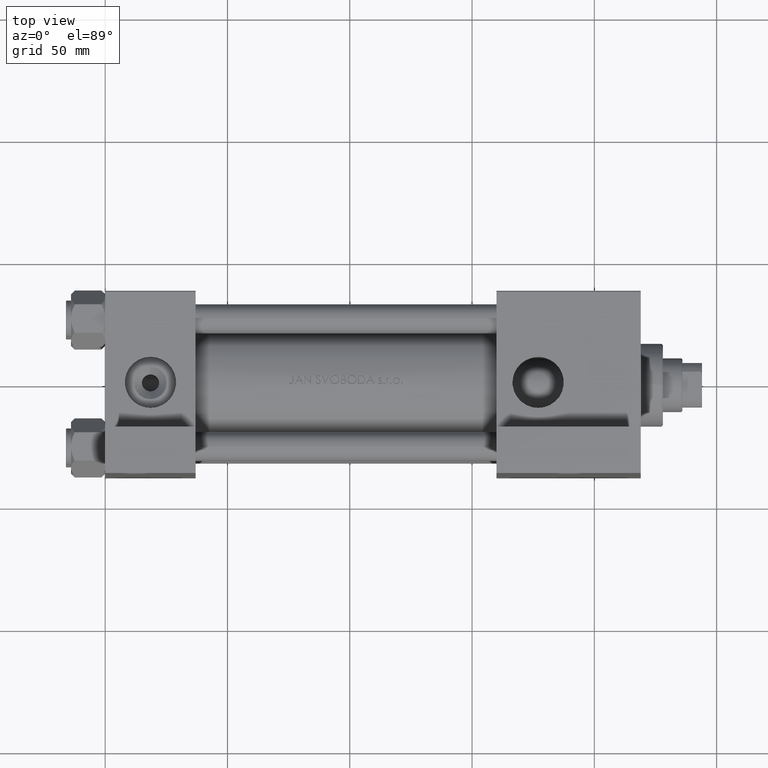
[diagram: clean part render]
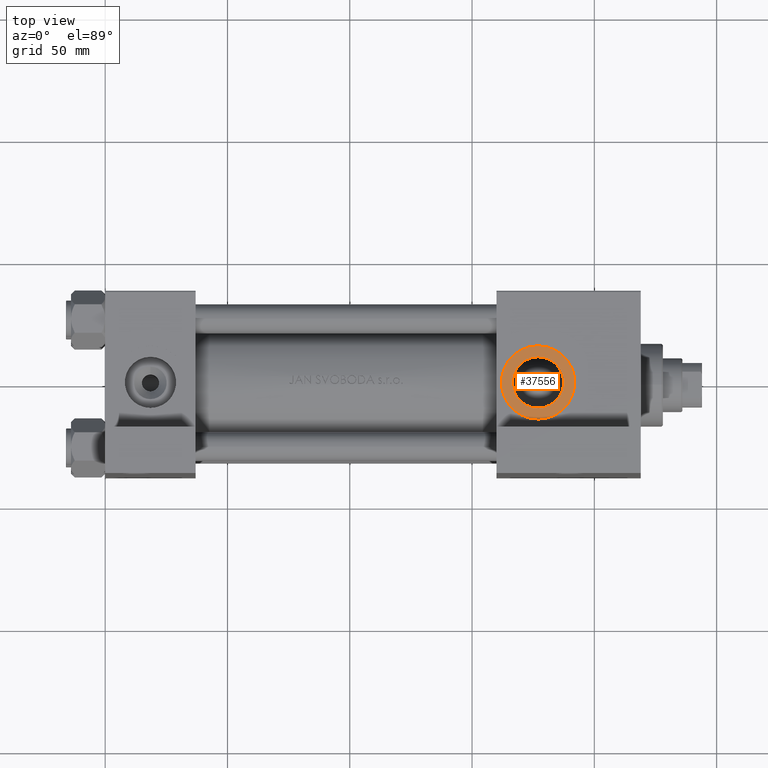
[diagram: same view with one face highlighted and labeled with its STEP entity id]
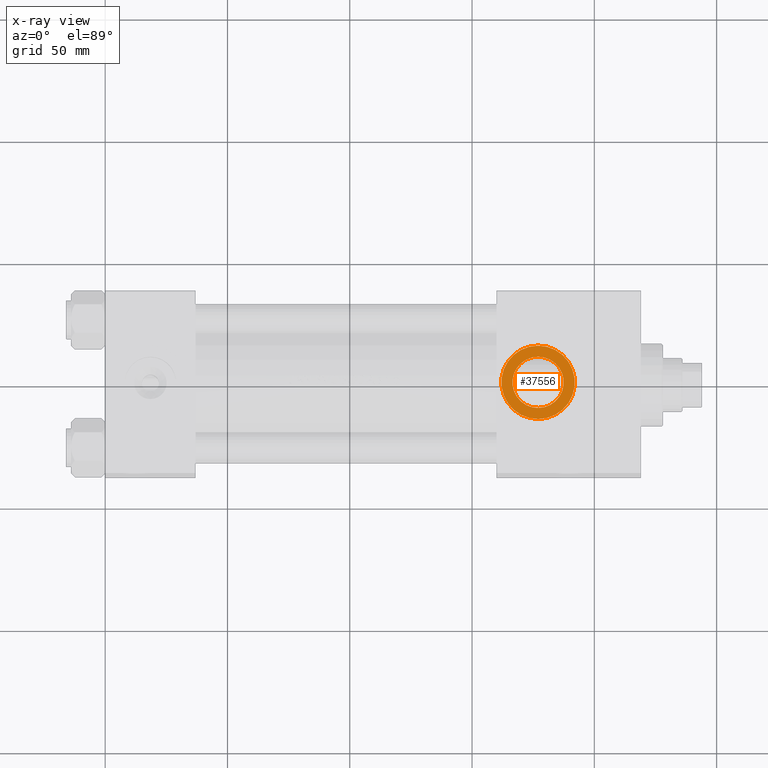
[diagram: x-ray of the same camera — body ghosted, the highlighted face saturated]
A machine part, top view. The second image highlights one B-rep face of the part: STEP entity #37556.
The next image is the same camera in x-ray: the body ghosted, the highlighted face saturated — about 0% of this face is hidden behind the body in this view.
In plain terms, the highlighted planar face has unit normal (0, -0, 1).
Its self-contained STEP definition (entity closure, byte-faithful):
#329 = DIRECTION ( 'NONE',  ( 0.000000000000000000, 0.000000000000000000, -1.000000000000000000 ) ) ;
#827 = CIRCLE ( 'NONE', #38278, 10.47999999999998622 ) ;
#2212 = ORIENTED_EDGE ( 'NONE', *, *, #36320, .T. ) ;
#3016 = PLANE ( 'NONE',  #28271 ) ;
#5245 = CARTESIAN_POINT ( 'NONE',  ( 177.0000000000000000, -37.29999999999999716, -15.00000000000002132 ) ) ;
#5625 = CARTESIAN_POINT ( 'NONE',  ( 177.0000000000000000, -37.29999999999999716, 3.486794186713383443E-15 ) ) ;
#8329 = CIRCLE ( 'NONE', #14692, 15.00000000000002487 ) ;
#8356 = DIRECTION ( 'NONE',  ( 0.000000000000000000, -1.000000000000000000, -8.673617379884036705E-17 ) ) ;
#11680 = CARTESIAN_POINT ( 'NONE',  ( 177.0000000000000000, -37.29999999999999716, -10.47999999999998266 ) ) ;
#11964 = CARTESIAN_POINT ( 'NONE',  ( 177.0000000000000000, -37.29999999999999716, 3.486794186713383443E-15 ) ) ;
#12575 = CARTESIAN_POINT ( 'NONE',  ( 177.0000000000000000, -37.29999999999999716, 3.486794186713383443E-15 ) ) ;
#12779 = VERTEX_POINT ( 'NONE', #37936 ) ;
#13094 = DIRECTION ( 'NONE',  ( 0.000000000000000000, 0.000000000000000000, -1.000000000000000000 ) ) ;
#14207 = FACE_BOUND ( 'NONE', #45814, .T. ) ;
#14391 = VERTEX_POINT ( 'NONE', #26479 ) ;
#14692 = AXIS2_PLACEMENT_3D ( 'NONE', #12575, #8356, #31287 ) ;
#17824 = EDGE_CURVE ( 'NONE', #12779, #26871, #30947, .T. ) ;
#20587 = DIRECTION ( 'NONE',  ( 0.000000000000000000, -1.000000000000000000, -8.673617379884036705E-17 ) ) ;
#22518 = DIRECTION ( 'NONE',  ( 0.000000000000000000, -1.000000000000000000, -8.673617379884036705E-17 ) ) ;
#26479 = CARTESIAN_POINT ( 'NONE',  ( 177.0000000000000000, -37.29999999999999716, 15.00000000000002842 ) ) ;
#26664 = EDGE_CURVE ( 'NONE', #26871, #12779, #827, .T. ) ;
#26871 = VERTEX_POINT ( 'NONE', #11680 ) ;
#27718 = VERTEX_POINT ( 'NONE', #5245 ) ;
#28088 = ORIENTED_EDGE ( 'NONE', *, *, #17824, .F. ) ;
#28271 = AXIS2_PLACEMENT_3D ( 'NONE', #37186, #29449, #29684 ) ;
#29449 = DIRECTION ( 'NONE',  ( 0.000000000000000000, -1.000000000000000000, -8.673617379884036705E-17 ) ) ;
#29684 = DIRECTION ( 'NONE',  ( 0.000000000000000000, 8.673617379884036705E-17, -1.000000000000000000 ) ) ;
#30421 = ORIENTED_EDGE ( 'NONE', *, *, #32598, .T. ) ;
#30434 = DIRECTION ( 'NONE',  ( 0.000000000000000000, 0.000000000000000000, -1.000000000000000000 ) ) ;
#30692 = DIRECTION ( 'NONE',  ( 0.000000000000000000, -1.000000000000000000, -8.673617379884036705E-17 ) ) ;
#30947 = CIRCLE ( 'NONE', #32522, 10.47999999999998622 ) ;
#31287 = DIRECTION ( 'NONE',  ( 0.000000000000000000, 0.000000000000000000, -1.000000000000000000 ) ) ;
#31326 = EDGE_LOOP ( 'NONE', ( #2212, #30421 ) ) ;
#32522 = AXIS2_PLACEMENT_3D ( 'NONE', #5625, #20587, #13094 ) ;
#32598 = EDGE_CURVE ( 'NONE', #14391, #27718, #44077, .T. ) ;
#34157 = FACE_OUTER_BOUND ( 'NONE', #31326, .T. ) ;
#34933 = ORIENTED_EDGE ( 'NONE', *, *, #26664, .F. ) ;
#35318 = AXIS2_PLACEMENT_3D ( 'NONE', #41733, #22518, #329 ) ;
#36320 = EDGE_CURVE ( 'NONE', #27718, #14391, #8329, .T. ) ;
#37186 = CARTESIAN_POINT ( 'NONE',  ( 177.0000000000000000, -37.29999999999999716, 3.486794186713383443E-15 ) ) ;
#37556 = ADVANCED_FACE ( 'NONE', ( #14207, #34157 ), #3016, .T. ) ;
#37936 = CARTESIAN_POINT ( 'NONE',  ( 177.0000000000000000, -37.29999999999999716, 10.47999999999998977 ) ) ;
#38278 = AXIS2_PLACEMENT_3D ( 'NONE', #11964, #30692, #30434 ) ;
#41733 = CARTESIAN_POINT ( 'NONE',  ( 177.0000000000000000, -37.29999999999999716, 3.486794186713383443E-15 ) ) ;
#44077 = CIRCLE ( 'NONE', #35318, 15.00000000000002487 ) ;
#45814 = EDGE_LOOP ( 'NONE', ( #34933, #28088 ) ) ;